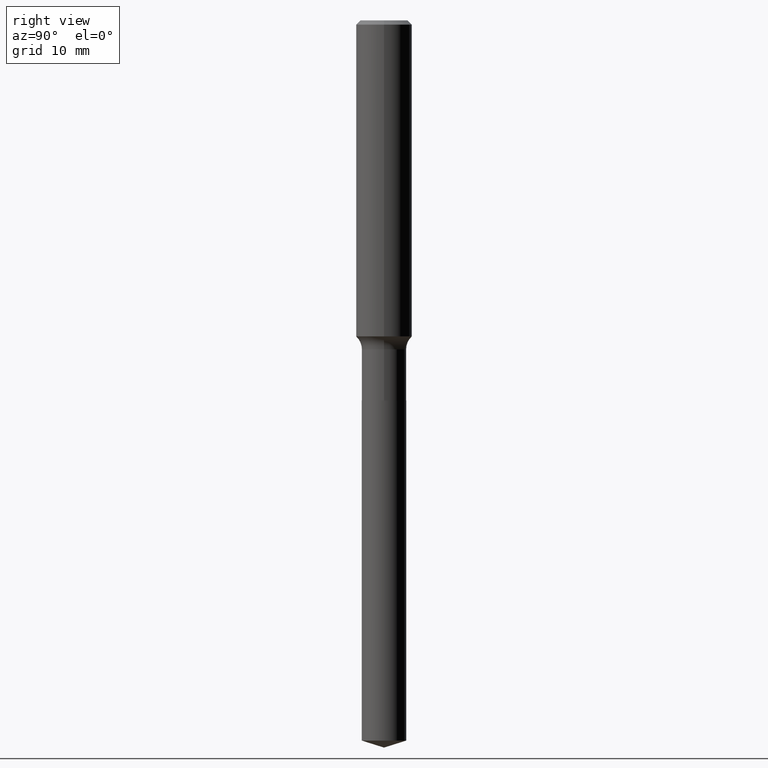
[diagram: clean part render]
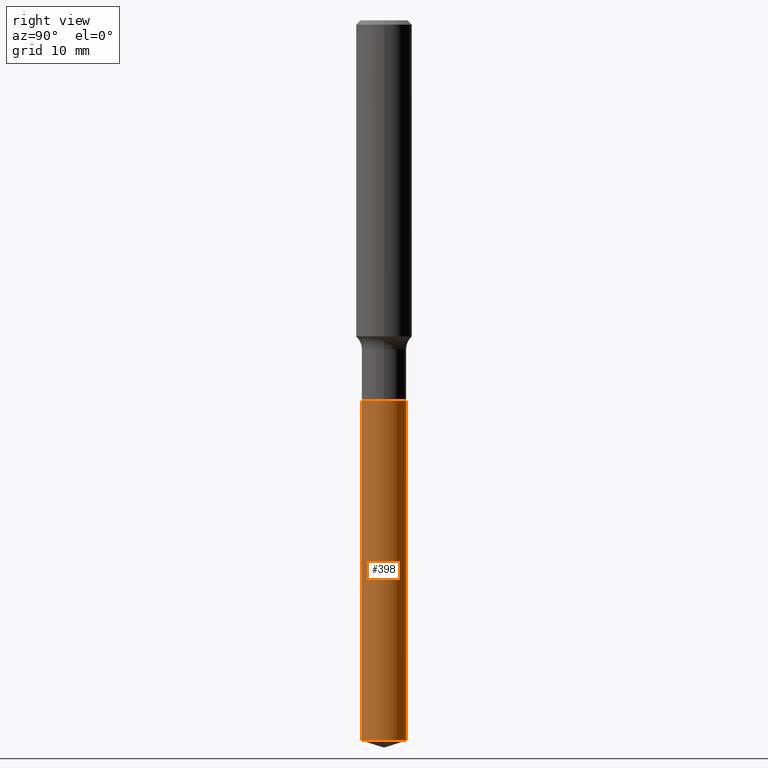
[diagram: same view with one face highlighted and labeled with its STEP entity id]
A machine part, right view. The second image highlights one B-rep face of the part: STEP entity #398.
In plain terms, the highlighted cylindrical surface (edge-blend (fillet) strip) has radius 2.5273 mm, axis along (-0, 0, 1).
Its self-contained STEP definition (entity closure, byte-faithful):
#13 = DIRECTION ( 'NONE',  ( -2.445480960601985091E-29, 3.491463933026432344E-15, 1.000000000000000000 ) ) ;
#14 = DIRECTION ( 'NONE',  ( -2.445480960601985091E-29, 3.491463933026432344E-15, 1.000000000000000000 ) ) ;
#15 = ORIENTED_EDGE ( 'NONE', *, *, #183, .F. ) ;
#26 = DIRECTION ( 'NONE',  ( -6.982962677686266711E-15, -1.000000000000000000, 5.491151746058819933E-15 ) ) ;
#41 = CYLINDRICAL_SURFACE ( 'NONE', #65, 0.09950000000000000511 ) ;
#56 = EDGE_CURVE ( 'NONE', #351, #281, #353, .T. ) ;
#65 = AXIS2_PLACEMENT_3D ( 'NONE', #454, #343, #349 ) ;
#76 = CARTESIAN_POINT ( 'NONE',  ( 7.069900220813783115E-16, 0.09949999999998877798, -3.218627770506540919 ) ) ;
#124 = CARTESIAN_POINT ( 'NONE',  ( 7.069900220813411364E-16, 0.09949999999999407929, -1.699000000000000288 ) ) ;
#150 = ORIENTED_EDGE ( 'NONE', *, *, #491, .T. ) ;
#183 = EDGE_CURVE ( 'NONE', #443, #281, #315, .T. ) ;
#197 = CARTESIAN_POINT ( 'NONE',  ( -6.948047864297420515E-16, -0.09950000000000593092, -1.698999999999999844 ) ) ;
#220 = EDGE_LOOP ( 'NONE', ( #150, #234, #15, #439 ) ) ;
#231 = EDGE_CURVE ( 'NONE', #342, #443, #319, .T. ) ;
#234 = ORIENTED_EDGE ( 'NONE', *, *, #56, .T. ) ;
#239 = CARTESIAN_POINT ( 'NONE',  ( -6.948047864297420515E-16, -0.09950000000000593092, -1.698999999999999844 ) ) ;
#246 = DIRECTION ( 'NONE',  ( -2.445480960601985371E-29, 3.491463933026432738E-15, 1.000000000000000000 ) ) ;
#253 = CARTESIAN_POINT ( 'NONE',  ( 4.154851501708547396E-29, -5.932026794694504207E-15, -1.699000000000000066 ) ) ;
#267 = FACE_OUTER_BOUND ( 'NONE', #220, .T. ) ;
#268 = VECTOR ( 'NONE', #246, 39.37007874015748143 ) ;
#281 = VERTEX_POINT ( 'NONE', #286 ) ;
#286 = CARTESIAN_POINT ( 'NONE',  ( 7.069900220813788045E-16, 0.09949999999999409317, -1.699000000000000288 ) ) ;
#292 = CARTESIAN_POINT ( 'NONE',  ( -6.948047864297048764E-16, -0.09950000000001124612, -3.218627770506540031 ) ) ;
#315 = CIRCLE ( 'NONE', #476, 0.09950000000000000511 ) ;
#319 = LINE ( 'NONE', #239, #489 ) ;
#324 = DIRECTION ( 'NONE',  ( -6.982962677686266711E-15, -1.000000000000000000, 2.745575873029409967E-15 ) ) ;
#342 = VERTEX_POINT ( 'NONE', #292 ) ;
#343 = DIRECTION ( 'NONE',  ( -2.445480960601985091E-29, 3.491463933026432344E-15, 1.000000000000000000 ) ) ;
#349 = DIRECTION ( 'NONE',  ( -6.982962677686266711E-15, -1.000000000000000000, 2.745575873029409967E-15 ) ) ;
#351 = VERTEX_POINT ( 'NONE', #76 ) ;
#352 = DIRECTION ( 'NONE',  ( -2.445480960601985371E-29, 3.491463933026432738E-15, 1.000000000000000000 ) ) ;
#353 = LINE ( 'NONE', #124, #268 ) ;
#398 = ADVANCED_FACE ( 'NONE', ( #267 ), #41, .T. ) ;
#412 = CIRCLE ( 'NONE', #458, 0.09950000000000000511 ) ;
#439 = ORIENTED_EDGE ( 'NONE', *, *, #231, .F. ) ;
#443 = VERTEX_POINT ( 'NONE', #197 ) ;
#454 = CARTESIAN_POINT ( 'NONE',  ( 4.154851501708547396E-29, -5.932026794694504207E-15, -1.699000000000000066 ) ) ;
#458 = AXIS2_PLACEMENT_3D ( 'NONE', #468, #14, #26 ) ;
#468 = CARTESIAN_POINT ( 'NONE',  ( 7.871072281684335663E-29, -1.123775234704346175E-14, -3.218627770506540475 ) ) ;
#476 = AXIS2_PLACEMENT_3D ( 'NONE', #253, #13, #324 ) ;
#489 = VECTOR ( 'NONE', #352, 39.37007874015748143 ) ;
#491 = EDGE_CURVE ( 'NONE', #342, #351, #412, .T. ) ;